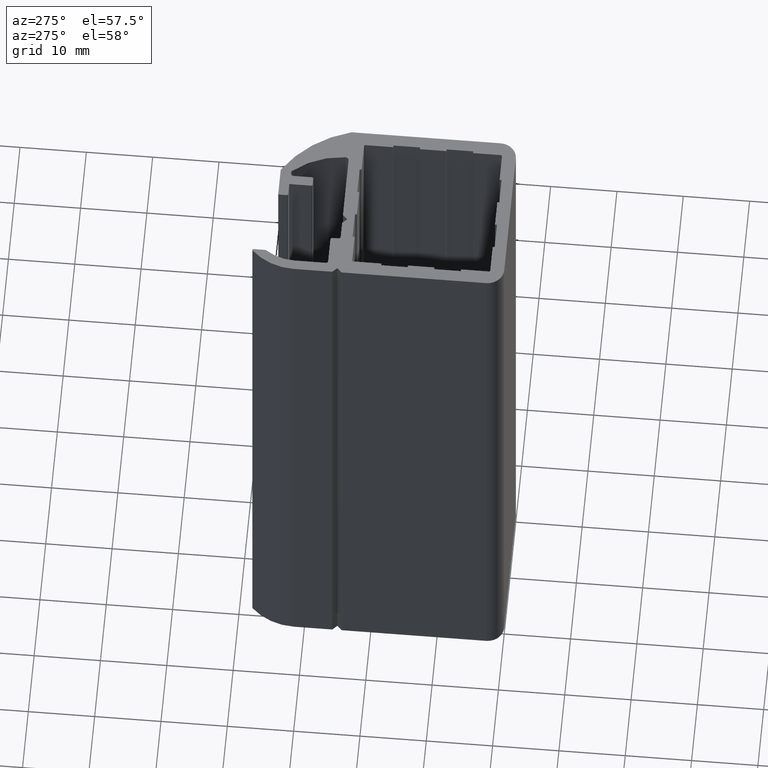
[diagram: clean part render]
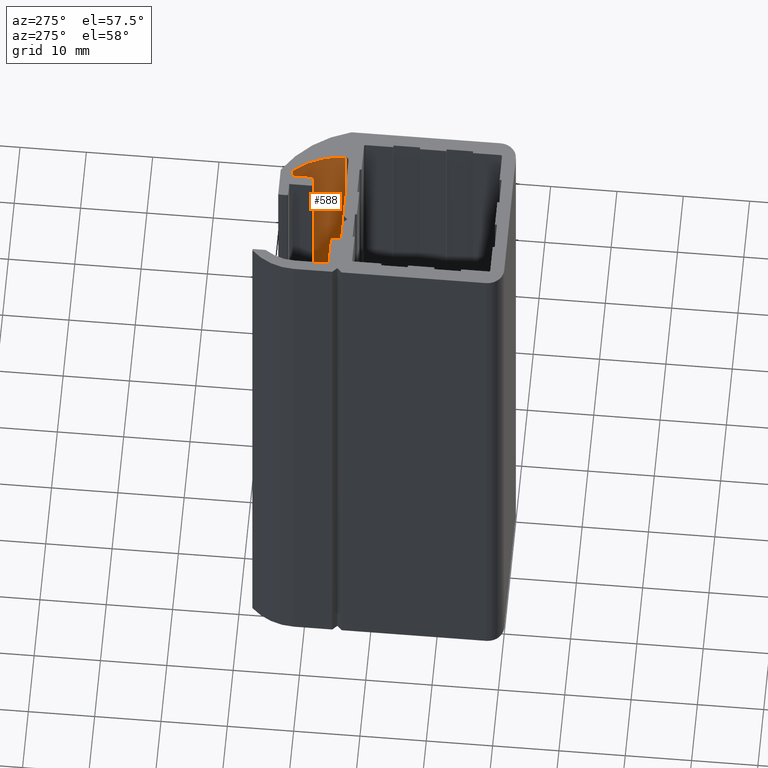
[diagram: same view with one face highlighted and labeled with its STEP entity id]
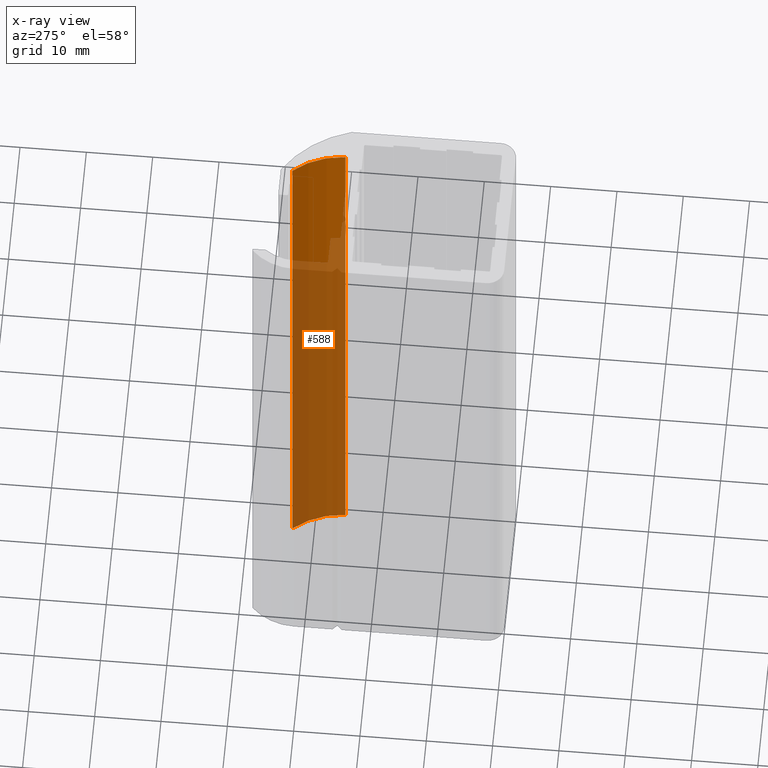
[diagram: x-ray of the same camera — body ghosted, the highlighted face saturated]
A machine part, auxiliary view. The second image highlights one B-rep face of the part: STEP entity #588.
The next image is the same camera in x-ray: the body ghosted, the highlighted face saturated — about 75% of this face is hidden behind the body in this view.
In plain terms, the highlighted cylindrical surface (partial cylindrical patch) has radius 12.5 mm, axis along (0, 0, -1).
Its self-contained STEP definition (entity closure, byte-faithful):
#528=CARTESIAN_POINT('',(4.874999999973852,33.267972846730203,0.0));
#529=VERTEX_POINT('',#528);
#537=CARTESIAN_POINT('',(4.874999999973852,33.267972846730203,100.0));
#538=VERTEX_POINT('',#537);
#539=CARTESIAN_POINT('',(4.874999999973852,33.267972846730203,0.0));
#540=DIRECTION('',(0.0,0.0,1.0));
#541=VECTOR('',#540,100.0);
#542=LINE('',#539,#541);
#543=EDGE_CURVE('',#529,#538,#542,.T.);
#556=CARTESIAN_POINT('',(-4.499999999935426,24.999999999739174,0.0));
#557=DIRECTION('',(0.0,0.0,-1.0));
#558=DIRECTION('',(0.750000000000227,0.661437827765890,0.0));
#559=AXIS2_PLACEMENT_3D('',#556,#557,#558);
#560=CYLINDRICAL_SURFACE('',#559,12.499999999875117);
#561=CARTESIAN_POINT('',(7.989144591880404,25.520833333078400,0.0));
#562=VERTEX_POINT('',#561);
#563=CARTESIAN_POINT('',(-4.499999999935427,24.999999999739174,0.0));
#564=DIRECTION('',(0.0,0.0,-1.0));
#565=DIRECTION('',(0.999131567356795,0.041666666667195,0.0));
#566=AXIS2_PLACEMENT_3D('',#563,#564,#565);
#567=CIRCLE('',#566,12.499999999875117);
#568=EDGE_CURVE('',#529,#562,#567,.T.);
#569=ORIENTED_EDGE('',*,*,#568,.T.);
#570=CARTESIAN_POINT('',(7.989144591880404,25.520833333078400,100.0));
#571=VERTEX_POINT('',#570);
#572=CARTESIAN_POINT('',(7.989144591880404,25.520833333078400,0.0));
#573=DIRECTION('',(0.0,0.0,1.0));
#574=VECTOR('',#573,100.0);
#575=LINE('',#572,#574);
#576=EDGE_CURVE('',#562,#571,#575,.T.);
#577=ORIENTED_EDGE('',*,*,#576,.T.);
#578=CARTESIAN_POINT('',(-4.499999999935427,24.999999999739174,100.0));
#579=DIRECTION('',(0.0,0.0,-1.0));
#580=DIRECTION('',(0.999131567356795,0.041666666667195,0.0));
#581=AXIS2_PLACEMENT_3D('',#578,#579,#580);
#582=CIRCLE('',#581,12.499999999875117);
#583=EDGE_CURVE('',#538,#571,#582,.T.);
#584=ORIENTED_EDGE('',*,*,#583,.F.);
#585=ORIENTED_EDGE('',*,*,#543,.F.);
#586=EDGE_LOOP('',(#569,#577,#584,#585));
#587=FACE_OUTER_BOUND('',#586,.T.);
#588=ADVANCED_FACE('',(#587),#560,.F.);